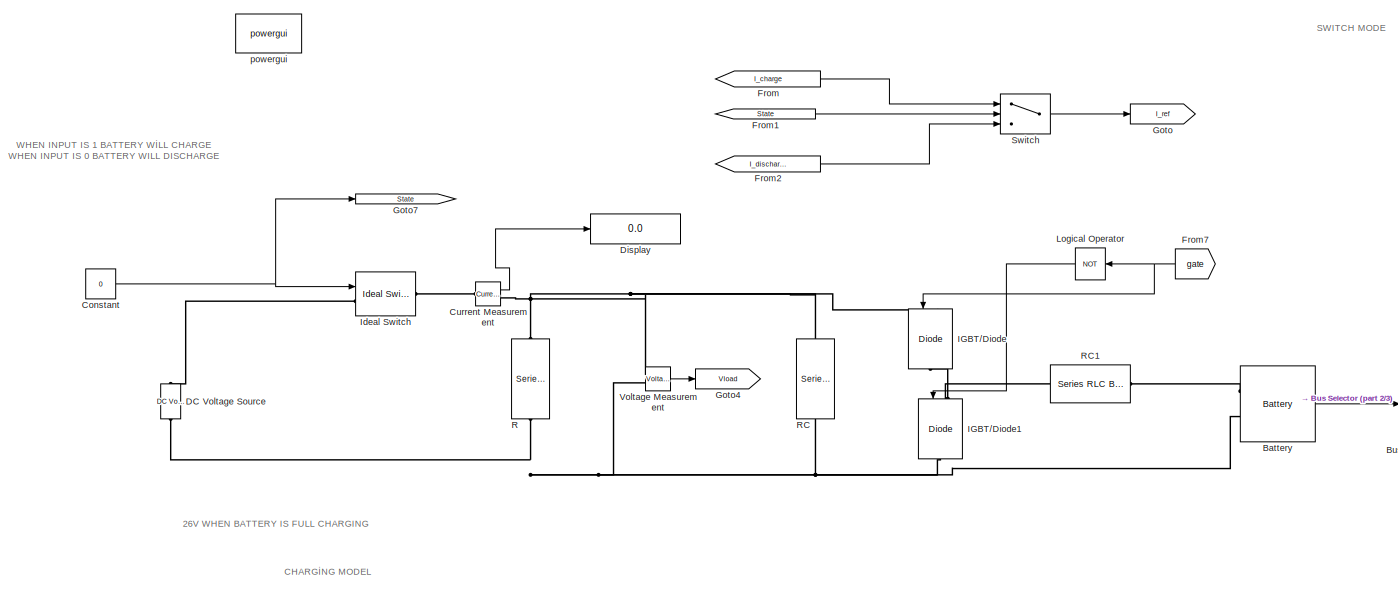
[diagram: root canvas - part 1/3, top left region]
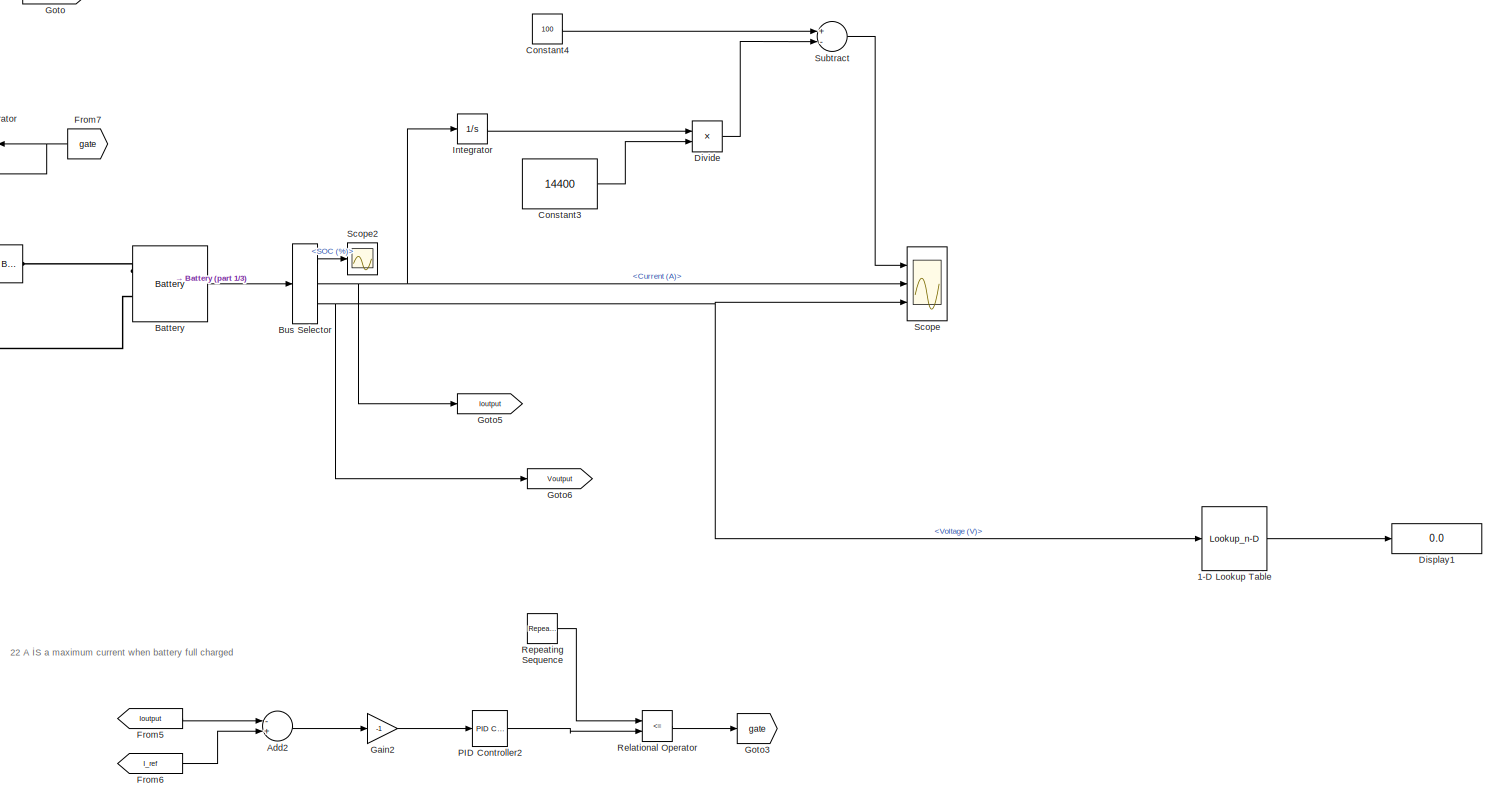
[diagram: root canvas - part 2/3, right side, full height]
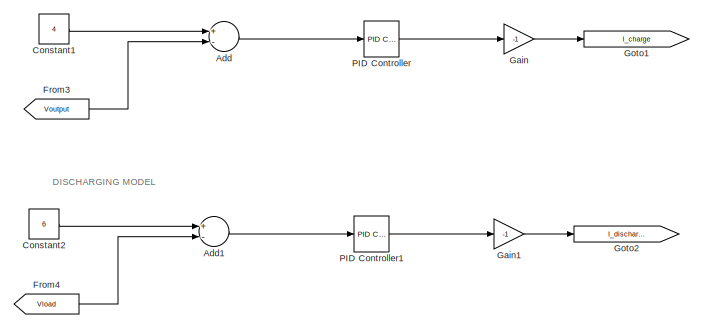
[diagram: root canvas - part 3/3, bottom left region]
MODEL slx_6579493f420a
KIND model
CONFIG AbsTol = auto
CONFIG EnableMultiTasking = off
CONFIG FixedStep = auto
CONFIG MaxStep = auto
CONFIG MinStep = auto
CONFIG RelTol = 1e-3
CONFIG SampleTimeConstraint = Unconstrained
CONFIG Solver = VariableStepAuto
CONFIG SolverName = VariableStepAuto
CONFIG StartTime = 0.0
CONFIG StopTime = 10.0
BLOCK [Lookup_n-D] 1-D Lookup Table
  BreakpointsForDimension1 = [3:0.01:4]
  InternalRulePriority = Speed
  NumberOfTableDimensions = 1
  Ports = [1, 1]
  RndMeth = Simplest
  Table = [0:1:100]
BLOCK [Sum] Add
  InputSameDT = off
  Inputs = +-
  OutDataTypeStr = Inherit: Inherit via internal rule
  Ports = [2, 1]
  SaturateOnIntegerOverflow = off
BLOCK [Sum] Add1
  InputSameDT = off
  Inputs = +-
  OutDataTypeStr = Inherit: Inherit via internal rule
  Ports = [2, 1]
  SaturateOnIntegerOverflow = off
BLOCK [Sum] Add2
  InputSameDT = off
  Inputs = -+
  OutDataTypeStr = Inherit: Inherit via internal rule
  Ports = [2, 1]
  SaturateOnIntegerOverflow = off
BLOCK [Reference] Battery  REF=electricdrivelib/Extra Sources/Battery
  Ports = [0, 1, 0, 0, 0, 2]
  SourceBlock = electricdrivelib/Extra Sources/Battery
  SourceType = Battery
BLOCK [BusSelector] Bus Selector
  OutputSignals = SOC (%),Current (A),Voltage (V)
  Ports = [1, 3]
BLOCK [Constant] Constant
  Value = 0
BLOCK [Constant] Constant1
  Value = 4
BLOCK [Constant] Constant2
  Value = 6
BLOCK [Constant] Constant3
  Value = 14400
BLOCK [Constant] Constant4
  Value = 100
BLOCK [Reference] Current Measurement  REF=powerlib/Measurements/Current Measurement
  Ports = [0, 1, 0, 0, 0, 1, 1]
  SourceBlock = powerlib/Measurements/Current Measurement
  SourceType = Current Measurement
  UserDataPersistent = on
BLOCK [Reference] DC Voltage Source  REF=powerlib/Electrical
Sources/DC Voltage Source
  Ports = [0, 0, 0, 0, 0, 1, 1]
  SourceBlock = powerlib/Electrical\nSources/DC Voltage Source
  SourceType = DC Voltage Source
BLOCK [Display] Display
  Decimation = 1
  Ports = [1]
BLOCK [Display] Display1
  Decimation = 1
  Ports = [1]
BLOCK [Product] Divide
  InputSameDT = off
  Inputs = */
  OutDataTypeStr = Inherit: Inherit via internal rule
  Ports = [2, 1]
  RndMeth = Floor
  SaturateOnIntegerOverflow = off
BLOCK [From] From
  GotoTag = I_charge
BLOCK [From] From1
  GotoTag = State
BLOCK [From] From2
  GotoTag = I_discharge
BLOCK [From] From3
  GotoTag = Voutput
BLOCK [From] From4
  GotoTag = Vload
BLOCK [From] From5
  GotoTag = Ioutput
BLOCK [From] From6
  GotoTag = I_ref
BLOCK [From] From7
  GotoTag = gate
BLOCK [Gain] Gain
  Gain = -1
  OutDataTypeStr = Inherit: Inherit via internal rule
  ParamDataTypeStr = Inherit: Inherit via internal rule
  SaturateOnIntegerOverflow = off
BLOCK [Gain] Gain1
  Gain = -1
  OutDataTypeStr = Inherit: Inherit via internal rule
  ParamDataTypeStr = Inherit: Inherit via internal rule
  SaturateOnIntegerOverflow = off
BLOCK [Gain] Gain2
  Gain = -1
  OutDataTypeStr = Inherit: Inherit via internal rule
  ParamDataTypeStr = Inherit: Inherit via internal rule
  SaturateOnIntegerOverflow = off
BLOCK [Goto] Goto
  GotoTag = I_ref
BLOCK [Goto] Goto1
  GotoTag = I_charge
BLOCK [Goto] Goto2
  GotoTag = I_discharge
BLOCK [Goto] Goto3
  GotoTag = gate
BLOCK [Goto] Goto4
  GotoTag = Vload
BLOCK [Goto] Goto5
  GotoTag = Ioutput
BLOCK [Goto] Goto6
  GotoTag = Voutput
BLOCK [Goto] Goto7
  GotoTag = State
BLOCK [Reference] IGBT//Diode  REF=powerlib/Power
Electronics/IGBT//Diode
  Ports = [1, 0, 0, 0, 0, 1, 1]
  SourceBlock = powerlib/Power\nElectronics/IGBT//Diode
  SourceType = IGBT/Diode
BLOCK [Reference] IGBT//Diode1  REF=powerlib/Power
Electronics/IGBT//Diode
  Ports = [1, 0, 0, 0, 0, 1, 1]
  SourceBlock = powerlib/Power\nElectronics/IGBT//Diode
  SourceType = IGBT/Diode
BLOCK [Reference] Ideal Switch  REF=powerlib/Power
Electronics/Ideal Switch
  Ports = [1, 0, 0, 0, 0, 1, 1]
  SourceBlock = powerlib/Power\nElectronics/Ideal Switch
  SourceType = Ideal Switch
BLOCK [Integrator] Integrator
  Ports = [1, 1]
BLOCK [Logic] Logical Operator
  AllPortsSameDT = off
  Operator = NOT
  OutDataTypeStr = boolean
  Ports = [1, 1]
BLOCK [Reference] PID Controller  REF=simulink/Continuous/PID Controller
  Ports = [1, 1]
  SourceBlock = simulink/Continuous/PID Controller
  SourceType = PID 1dof
BLOCK [Reference] PID Controller1  REF=simulink/Continuous/PID Controller
  Ports = [1, 1]
  SourceBlock = simulink/Continuous/PID Controller
  SourceType = PID 1dof
BLOCK [Reference] PID Controller2  REF=simulink/Continuous/PID Controller
  Ports = [1, 1]
  SourceBlock = simulink/Continuous/PID Controller
  SourceType = PID 1dof
BLOCK [Reference] R  REF=powerlib/Elements/Series RLC Branch
  Ports = [0, 0, 0, 0, 0, 1, 1]
  SourceBlock = powerlib/Elements/Series RLC Branch
  SourceType = Series RLC Branch
BLOCK [Reference] RC  REF=powerlib/Elements/Series RLC Branch
  Ports = [0, 0, 0, 0, 0, 1, 1]
  SourceBlock = powerlib/Elements/Series RLC Branch
  SourceType = Series RLC Branch
BLOCK [Reference] RC1  REF=powerlib/Elements/Series RLC Branch
  Ports = [0, 0, 0, 0, 0, 1, 1]
  SourceBlock = powerlib/Elements/Series RLC Branch
  SourceType = Series RLC Branch
BLOCK [RelationalOperator] Relational Operator
  InputSameDT = off
  Operator = <=
  OutDataTypeStr = boolean
  Ports = [2, 1]
  RndMeth = Simplest
BLOCK [Reference] Repeating Sequence  REF=simulink/Sources/Repeating
Sequence
  Ports = [0, 1]
  SourceBlock = simulink/Sources/Repeating\nSequence
  SourceType = Repeating table
BLOCK [Scope] Scope
  NumInputPorts = 3
  Ports = [3]
  ScopeSpecificationString = Simulink.scopes.TimeScopeBlockCfg('CurrentConfiguration', extmgr.ConfigurationSet(extmgr.Configuration('Core','General UI',true),extmgr.Configuration('Core','Source UI',true),extmgr.Configuration('Sources','WiredSimulink',true),extmgr.Configuration('Visuals','Time Domain',true,'SerializedDisplays',{struct('MinYLimReal','99.99427','MaxYLimReal','100.00064','YLabelReal','','MinYLimMag','99.99427','M...<+2783ch>
BLOCK [Scope] Scope2
  NumInputPorts = 1
  Ports = [1]
  ScopeSpecificationString = Simulink.scopes.TimeScopeBlockCfg('CurrentConfiguration', extmgr.ConfigurationSet(extmgr.Configuration('Core','General UI',true),extmgr.Configuration('Core','Source UI',true),extmgr.Configuration('Sources','WiredSimulink',true,'DataLoggingVariableName','ScopeData2'),extmgr.Configuration('Visuals','Time Domain',true,'SerializedDisplays',{struct('MinYLimReal','99.28278','MaxYLimReal','100.07969','YL...<+1432ch>
BLOCK [Sum] Subtract
  InputSameDT = off
  Inputs = +-
  OutDataTypeStr = Inherit: Inherit via internal rule
  Ports = [2, 1]
  SaturateOnIntegerOverflow = off
BLOCK [Switch] Switch
  Criteria = u2 > Threshold
  InputSameDT = off
  SaturateOnIntegerOverflow = off
BLOCK [Reference] Voltage Measurement  REF=powerlib/Measurements/Voltage Measurement
  Ports = [0, 1, 0, 0, 0, 2]
  SourceBlock = powerlib/Measurements/Voltage Measurement
  SourceType = Voltage Measurement
  UserDataPersistent = on
BLOCK [Reference] powergui  REF=powerlib/powergui
  Ports = []
  Priority = 1
  SourceBlock = powerlib/powergui
  SourceType = PSB option menu block
ANNOTATION (root): 22 A İS a maximum current when battery full charged
ANNOTATION (root): 26V WHEN BATTERY IS FULL CHARGING
ANNOTATION (root): CHARGİNG MODEL
ANNOTATION (root): DISCHARGING MODEL
ANNOTATION (root): SWITCH MODE
ANNOTATION (root): WHEN INPUT IS 1 BATTERY WİLL CHARGE WHEN INPUT IS 0 BATTERY WILL DISCHARGE
LINE 1-D Lookup Table:1 -> Display1:1
LINE Add1:1 -> PID Controller1:1
LINE Add2:1 -> Gain2:1
LINE Add:1 -> PID Controller:1
LINE Battery:1 -> Bus Selector:1
LINE Bus Selector:1 -> Scope2:1
NET Bus Selector:2 -> Goto5:1, Integrator:1, Scope:2
NET Bus Selector:3 -> 1-D Lookup Table:1, Goto6:1, Scope:3
LINE Constant1:1 -> Add:1
LINE Constant2:1 -> Add1:1
LINE Constant3:1 -> Divide:2
LINE Constant4:1 -> Subtract:1
NET Constant:1 -> Goto7:1, Ideal Switch:1
LINE Current Measurement:1 -> Display:1
LINE Divide:1 -> Subtract:2
LINE From1:1 -> Switch:2
LINE From2:1 -> Switch:3
LINE From3:1 -> Add:2
LINE From4:1 -> Add1:2
LINE From5:1 -> Add2:1
LINE From6:1 -> Add2:2
NET From7:1 -> IGBT//Diode:1, Logical Operator:1
LINE From:1 -> Switch:1
LINE Gain1:1 -> Goto2:1
LINE Gain2:1 -> PID Controller2:1
LINE Gain:1 -> Goto1:1
LINE Integrator:1 -> Divide:1
LINE Logical Operator:1 -> IGBT//Diode1:1
LINE PID Controller1:1 -> Gain1:1
LINE PID Controller2:1 -> Relational Operator:2
LINE PID Controller:1 -> Gain:1
LINE Relational Operator:1 -> Goto3:1
LINE Repeating Sequence:1 -> Relational Operator:1
LINE Subtract:1 -> Scope:1
LINE Switch:1 -> Goto:1
LINE Voltage Measurement:1 -> Goto4:1
PLINE Battery:LConn1 -- RC1:LConn1
PNET net1: Battery:LConn2 -- DC Voltage Source:LConn1 -- IGBT//Diode1:RConn1 -- R:RConn1 -- RC:RConn1 -- Voltage Measurement:LConn2
PLINE Current Measurement:LConn1 -- Ideal Switch:RConn1
PNET net2: Current Measurement:RConn1 -- IGBT//Diode:LConn1 -- R:LConn1 -- RC:LConn1 -- Voltage Measurement:LConn1
PLINE DC Voltage Source:RConn1 -- Ideal Switch:LConn1
PNET net3: IGBT//Diode1:LConn1 -- IGBT//Diode:RConn1 -- RC1:RConn1
note: NET lines group one-source signal fan-out (src -> all destinations, sorted); 1:1 wires keep LINE; PNET lines group multi-terminal physical nets as a canonical sorted terminal list (undirected conserving connections); 2-terminal nets keep the pairwise PLINE form
